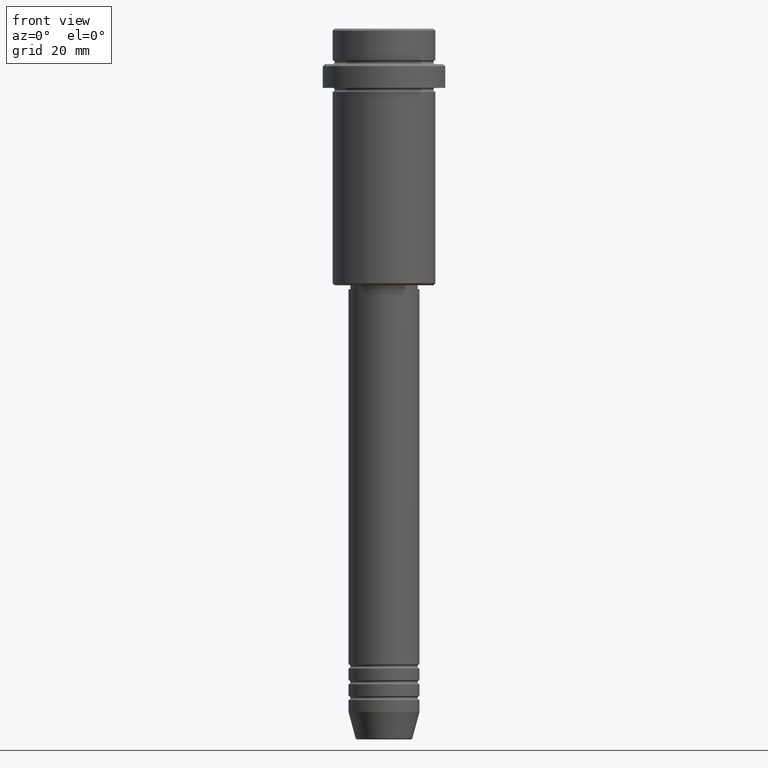
[diagram: clean part render]
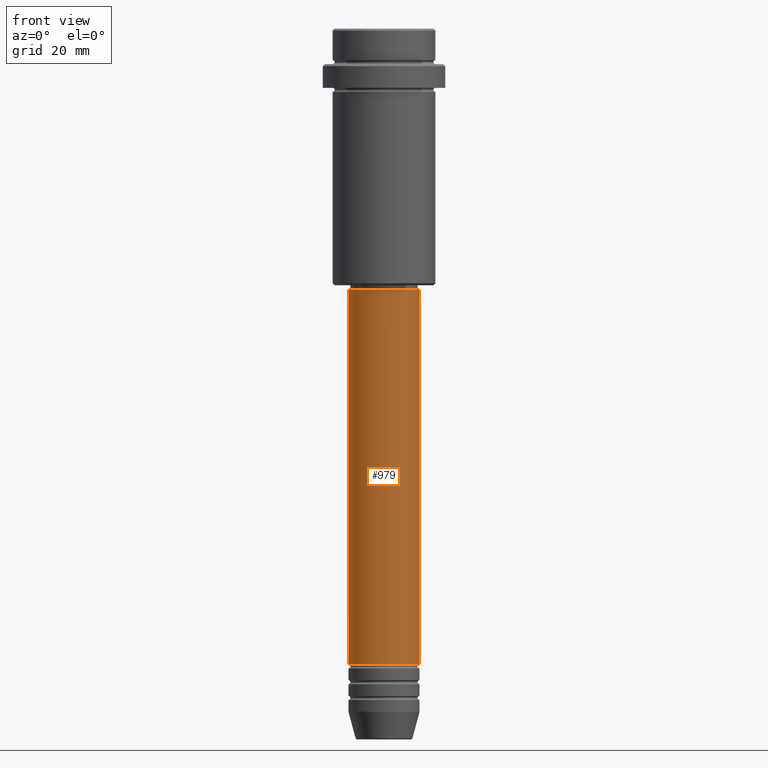
[diagram: same view with one face highlighted and labeled with its STEP entity id]
A machine part, front view. The second image highlights one B-rep face of the part: STEP entity #979.
In plain terms, the highlighted cylindrical surface (edge-blend (fillet) strip) has radius 9 mm, axis along (-0, -0, 1).
Its self-contained STEP definition (entity closure, byte-faithful):
#29 = DIRECTION ( 'NONE',  ( -0.000000000000000000, -0.000000000000000000, 1.000000000000000000 ) ) ;
#33 = DIRECTION ( 'NONE',  ( -0.000000000000000000, -0.000000000000000000, 1.000000000000000000 ) ) ;
#63 = FACE_OUTER_BOUND ( 'NONE', #1355, .T. ) ;
#104 = CARTESIAN_POINT ( 'NONE',  ( -9.000000000000001776, 1.102182119232617911E-15, -66.00000000000000000 ) ) ;
#146 = AXIS2_PLACEMENT_3D ( 'NONE', #1371, #608, #730 ) ;
#252 = EDGE_CURVE ( 'NONE', #283, #345, #1321, .T. ) ;
#255 = CARTESIAN_POINT ( 'NONE',  ( 9.000000000000001776, 0.000000000000000000, 0.000000000000000000 ) ) ;
#274 = DIRECTION ( 'NONE',  ( -0.000000000000000000, -0.000000000000000000, 1.000000000000000000 ) ) ;
#283 = VERTEX_POINT ( 'NONE', #648 ) ;
#285 = ORIENTED_EDGE ( 'NONE', *, *, #388, .F. ) ;
#295 = CARTESIAN_POINT ( 'NONE',  ( 9.000000000000000000, 0.000000000000000000, -160.9999999999998579 ) ) ;
#302 = DIRECTION ( 'NONE',  ( -0.000000000000000000, -0.000000000000000000, 1.000000000000000000 ) ) ;
#345 = VERTEX_POINT ( 'NONE', #295 ) ;
#388 = EDGE_CURVE ( 'NONE', #283, #655, #526, .T. ) ;
#395 = DIRECTION ( 'NONE',  ( 1.000000000000000000, 0.000000000000000000, 0.000000000000000000 ) ) ;
#464 = LINE ( 'NONE', #255, #1275 ) ;
#468 = CARTESIAN_POINT ( 'NONE',  ( 0.000000000000000000, 0.000000000000000000, -66.00000000000000000 ) ) ;
#493 = DIRECTION ( 'NONE',  ( 1.000000000000000000, 0.000000000000000000, 0.000000000000000000 ) ) ;
#526 = LINE ( 'NONE', #1399, #1413 ) ;
#545 = CARTESIAN_POINT ( 'NONE',  ( 9.000000000000001776, 0.000000000000000000, -66.00000000000000000 ) ) ;
#608 = DIRECTION ( 'NONE',  ( -0.000000000000000000, -0.000000000000000000, 1.000000000000000000 ) ) ;
#648 = CARTESIAN_POINT ( 'NONE',  ( -9.000000000000000000, 1.102182119232617714E-15, -160.9999999999998579 ) ) ;
#655 = VERTEX_POINT ( 'NONE', #104 ) ;
#710 = AXIS2_PLACEMENT_3D ( 'NONE', #1268, #274, #395 ) ;
#718 = CYLINDRICAL_SURFACE ( 'NONE', #146, 9.000000000000001776 ) ;
#730 = DIRECTION ( 'NONE',  ( 1.000000000000000000, 0.000000000000000000, 0.000000000000000000 ) ) ;
#736 = CIRCLE ( 'NONE', #762, 9.000000000000001776 ) ;
#749 = ORIENTED_EDGE ( 'NONE', *, *, #1019, .T. ) ;
#762 = AXIS2_PLACEMENT_3D ( 'NONE', #468, #33, #493 ) ;
#907 = ORIENTED_EDGE ( 'NONE', *, *, #252, .T. ) ;
#979 = ADVANCED_FACE ( 'NONE', ( #63 ), #718, .T. ) ;
#1019 = EDGE_CURVE ( 'NONE', #345, #1078, #464, .T. ) ;
#1078 = VERTEX_POINT ( 'NONE', #545 ) ;
#1268 = CARTESIAN_POINT ( 'NONE',  ( 0.000000000000000000, 0.000000000000000000, -160.9999999999998579 ) ) ;
#1275 = VECTOR ( 'NONE', #29, 1000.000000000000000 ) ;
#1321 = CIRCLE ( 'NONE', #710, 9.000000000000000000 ) ;
#1335 = EDGE_CURVE ( 'NONE', #655, #1078, #736, .T. ) ;
#1352 = ORIENTED_EDGE ( 'NONE', *, *, #1335, .F. ) ;
#1355 = EDGE_LOOP ( 'NONE', ( #285, #907, #749, #1352 ) ) ;
#1371 = CARTESIAN_POINT ( 'NONE',  ( 0.000000000000000000, 0.000000000000000000, 0.000000000000000000 ) ) ;
#1399 = CARTESIAN_POINT ( 'NONE',  ( -9.000000000000001776, 1.102182119232617911E-15, 0.000000000000000000 ) ) ;
#1413 = VECTOR ( 'NONE', #302, 1000.000000000000000 ) ;